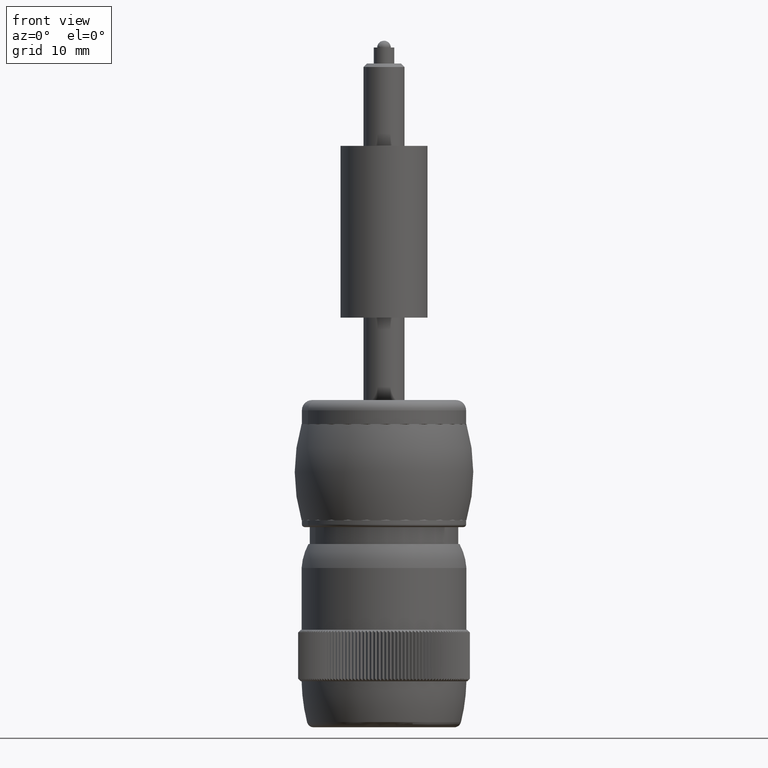
[diagram: clean part render]
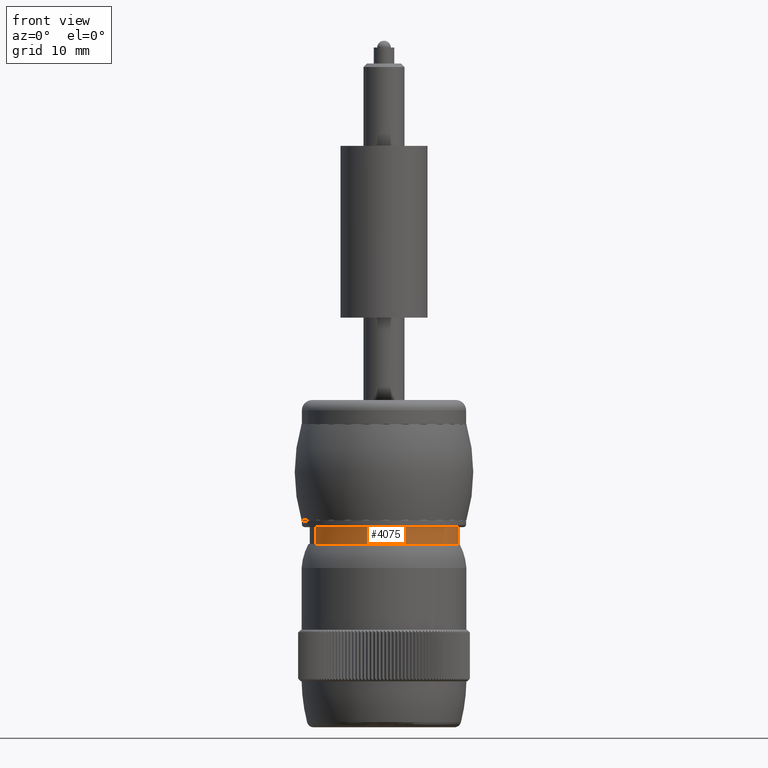
[diagram: same view with one face highlighted and labeled with its STEP entity id]
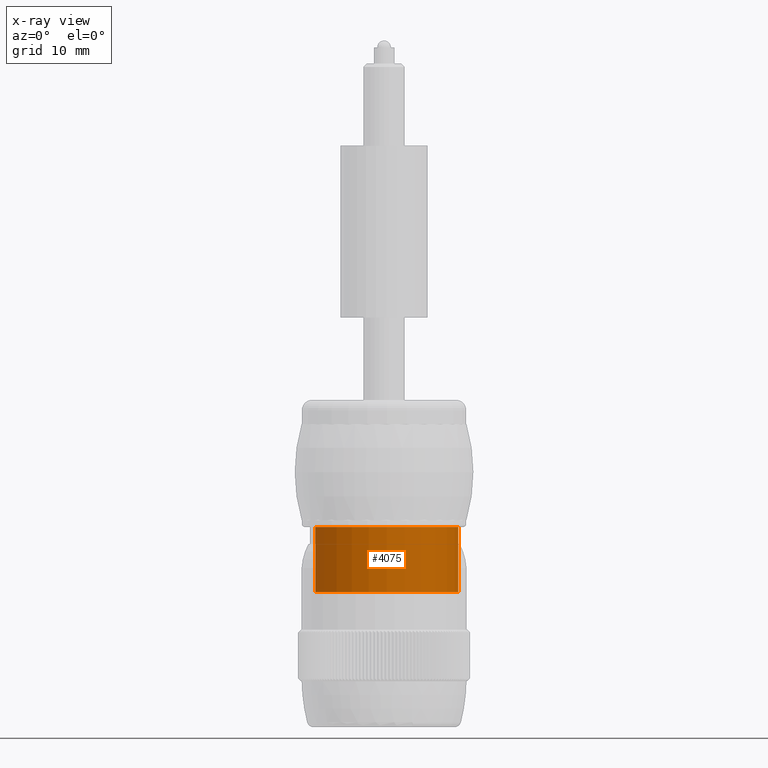
[diagram: x-ray of the same camera — body ghosted, the highlighted face saturated]
A machine part, front view. The second image highlights one B-rep face of the part: STEP entity #4075.
The next image is the same camera in x-ray: the body ghosted, the highlighted face saturated — about 0% of this face is hidden behind the body in this view.
In plain terms, the highlighted cylindrical surface (partial cylindrical patch) has radius 10.85 mm, axis along (0, 0, -1).
Its self-contained STEP definition (entity closure, byte-faithful):
#4075 = ADVANCED_FACE ( 'NONE', ( #17108 ), #17137, .T. ) ;
#4076 = ORIENTED_EDGE ( 'NONE', *, *, #4187, .F. ) ;
#4114 = EDGE_LOOP ( 'NONE', ( #4076, #4141, #4128, #4132 ) ) ;
#4120 = EDGE_CURVE ( 'NONE', #4190, #4123, #17318, .T. ) ;
#4123 = VERTEX_POINT ( 'NONE', #17308 ) ;
#4128 = ORIENTED_EDGE ( 'NONE', *, *, #4120, .T. ) ;
#4132 = ORIENTED_EDGE ( 'NONE', *, *, #4133, .F. ) ;
#4133 = EDGE_CURVE ( 'NONE', #4147, #4123, #17396, .T. ) ;
#4141 = ORIENTED_EDGE ( 'NONE', *, *, #4142, .T. ) ;
#4142 = EDGE_CURVE ( 'NONE', #4191, #4190, #17436, .T. ) ;
#4147 = VERTEX_POINT ( 'NONE', #17426 ) ;
#4187 = EDGE_CURVE ( 'NONE', #4191, #4147, #17495, .T. ) ;
#4190 = VERTEX_POINT ( 'NONE', #17545 ) ;
#4191 = VERTEX_POINT ( 'NONE', #17544 ) ;
#17108 = FACE_OUTER_BOUND ( 'NONE', #4114, .T. ) ;
#17134 = DIRECTION ( 'NONE',  ( -0.9215590813441703100, -0.3882381480381457100, 0.0000000000000000000 ) ) ;
#17135 = DIRECTION ( 'NONE',  ( 0.0000000000000000000, 0.0000000000000000000, -1.000000000000000000 ) ) ;
#17136 = AXIS2_PLACEMENT_3D ( 'NONE', #17139, #17135, #17134 ) ;
#17137 = CYLINDRICAL_SURFACE ( 'NONE', #17136, 0.4271653543307086200 ) ;
#17139 = CARTESIAN_POINT ( 'NONE',  ( -0.1372700539044540400, -0.006681459373031536900, -1.481933898517458800 ) ) ;
#17308 = CARTESIAN_POINT ( 'NONE',  ( -0.5309281654235188400, -0.1725233454444441400, -1.855949646548954700 ) ) ;
#17315 = DIRECTION ( 'NONE',  ( 0.0000000000000000000, 0.0000000000000000000, -1.000000000000000000 ) ) ;
#17316 = VECTOR ( 'NONE', #17315, 39.37007874015748100 ) ;
#17317 = CARTESIAN_POINT ( 'NONE',  ( -0.5309281654235188400, -0.1725233454444441400, -1.481933898517458800 ) ) ;
#17318 = LINE ( 'NONE', #17317, #17316 ) ;
#17392 = DIRECTION ( 'NONE',  ( -0.9215590813441703100, -0.3882381480381457100, 0.0000000000000000000 ) ) ;
#17393 = DIRECTION ( 'NONE',  ( 0.0000000000000000000, 0.0000000000000000000, -1.000000000000000000 ) ) ;
#17394 = CARTESIAN_POINT ( 'NONE',  ( -0.1372700539044540400, -0.006681459373031536900, -1.855949646548954700 ) ) ;
#17395 = AXIS2_PLACEMENT_3D ( 'NONE', #17394, #17393, #17392 ) ;
#17396 = CIRCLE ( 'NONE', #17395, 0.4271653543307086200 ) ;
#17426 = CARTESIAN_POINT ( 'NONE',  ( 0.2563880576146107500, 0.1591604266983811200, -1.855949646548954700 ) ) ;
#17432 = DIRECTION ( 'NONE',  ( -0.9215590813441703100, -0.3882381480381457100, 0.0000000000000000000 ) ) ;
#17433 = DIRECTION ( 'NONE',  ( 0.0000000000000000000, 0.0000000000000000000, -1.000000000000000000 ) ) ;
#17434 = CARTESIAN_POINT ( 'NONE',  ( -0.1372700539044540400, -0.006681459373031536900, -1.481933898517458800 ) ) ;
#17435 = AXIS2_PLACEMENT_3D ( 'NONE', #17434, #17433, #17432 ) ;
#17436 = CIRCLE ( 'NONE', #17435, 0.4271653543307086200 ) ;
#17494 = CARTESIAN_POINT ( 'NONE',  ( 0.2563880576146107500, 0.1591604266983811200, -1.481933898517458800 ) ) ;
#17495 = LINE ( 'NONE', #17494, #17551 ) ;
#17544 = CARTESIAN_POINT ( 'NONE',  ( 0.2563880576146107500, 0.1591604266983811200, -1.481933898517458800 ) ) ;
#17545 = CARTESIAN_POINT ( 'NONE',  ( -0.5309281654235188400, -0.1725233454444441400, -1.481933898517458800 ) ) ;
#17550 = DIRECTION ( 'NONE',  ( 0.0000000000000000000, 0.0000000000000000000, -1.000000000000000000 ) ) ;
#17551 = VECTOR ( 'NONE', #17550, 39.37007874015748100 ) ;